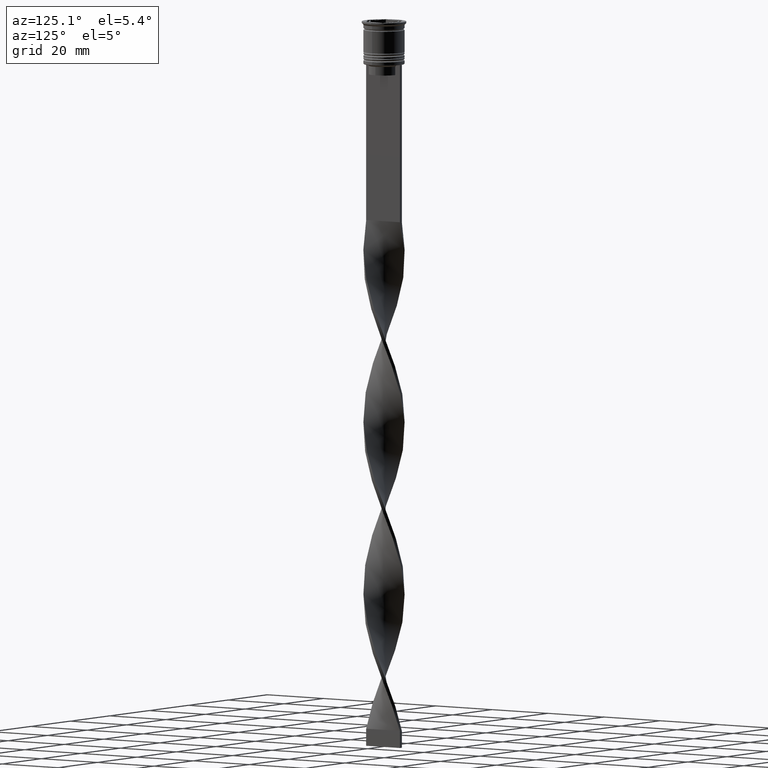
[diagram: clean part render]
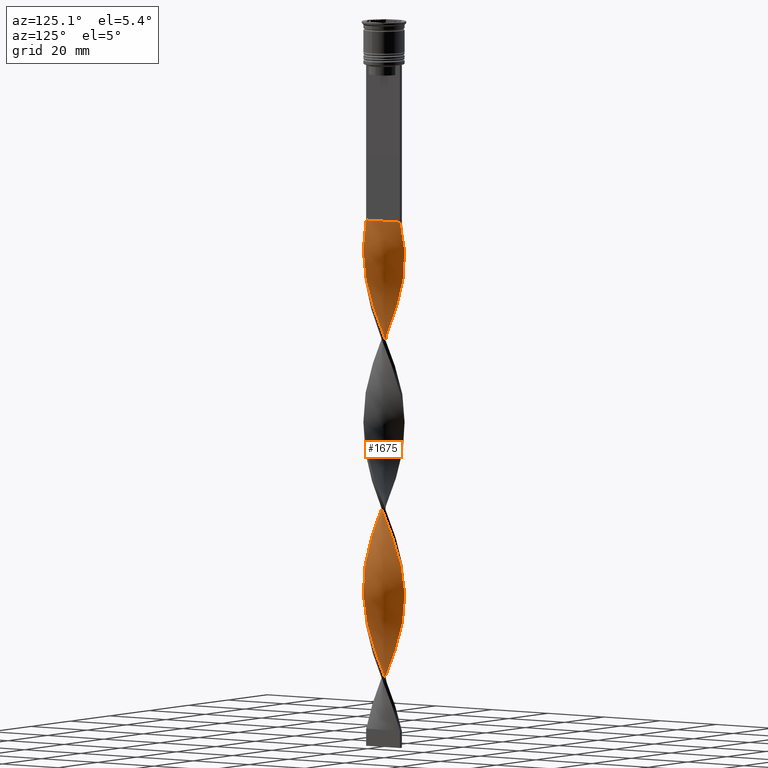
[diagram: same view with one face highlighted and labeled with its STEP entity id]
A machine part, auxiliary view. The second image highlights one B-rep face of the part: STEP entity #1675.
In plain terms, the highlighted face is a freeform B-spline surface patch.
Its self-contained STEP definition (entity closure, byte-faithful):
#18 = CARTESIAN_POINT ( 'NONE',  ( -4.858813575065529022, -3.599054477032529675, -141.7647058823529562 ) ) ;
#23 = CARTESIAN_POINT ( 'NONE',  ( -5.437407565418681088, 2.644969083640993368, -77.49019607843138147 ) ) ;
#39 = CARTESIAN_POINT ( 'NONE',  ( 4.791340338341086635, -3.688403482277188949, -170.9803921568627629 ) ) ;
#43 = CARTESIAN_POINT ( 'NONE',  ( 5.593848926018644363, 2.226848488981700402, -140.3039215686274588 ) ) ;
#59 = CARTESIAN_POINT ( 'NONE',  ( -4.411678320489674121, -4.097205681500676100, -195.8137254901960773 ) ) ;
#60 = CARTESIAN_POINT ( 'NONE',  ( 5.928270878038556901, -1.051477244927329080, -131.5392156862745310 ) ) ;
#84 = CARTESIAN_POINT ( 'NONE',  ( -5.437407565418681088, 2.644969083640993368, -176.8235294117647243 ) ) ;
#105 = CARTESIAN_POINT ( 'NONE',  ( -4.486786045491809816, 4.014816431915658512, -172.4411764705882035 ) ) ;
#106 = CARTESIAN_POINT ( 'NONE',  ( 6.020539237501859375, 0.05574306863229182285, -134.4607843137254974 ) ) ;
#125 = CARTESIAN_POINT ( 'NONE',  ( 2.733484409399328463, -5.364518895816363653, -116.9313725490195992 ) ) ;
#142 = CARTESIAN_POINT ( 'NONE',  ( -4.791340338341087524, -3.688403482277189838, -95.01960784313726549 ) ) ;
#150 = CARTESIAN_POINT ( 'NONE',  ( -3.583701545128942012, 4.838086732939006041, -116.9313725490195992 ) ) ;
#169 = CARTESIAN_POINT ( 'NONE',  ( -1.701213882420739676, 5.775454209519711668, -64.34313725490196134 ) ) ;
#176 = CARTESIAN_POINT ( 'NONE',  ( -4.032016302638262495, -4.506007880724165027, -197.2745098039215463 ) ) ;
#177 = CARTESIAN_POINT ( 'NONE',  ( -5.089420681871064112, 3.216799204635418796, -122.7745098039215605 ) ) ;
#190 = DIRECTION ( 'NONE',  ( 0.000000000000000000, 1.000000000000000000, 0.000000000000000000 ) ) ;
#192 = CARTESIAN_POINT ( 'NONE',  ( -5.907785354072954576, 1.161065118846088762, -128.6176470588235361 ) ) ;
#210 = CARTESIAN_POINT ( 'NONE',  ( 4.411678320489672345, -4.097205681500675212, -70.18627450980390847 ) ) ;
#212 = CARTESIAN_POINT ( 'NONE',  ( 3.135386787619625082, -5.170165585153850607, -65.80392156862745878 ) ) ;
#228 = CARTESIAN_POINT ( 'NONE',  ( -0.5000000000000009992, -6.000000000000000888, -108.1666666666666572 ) ) ;
#234 = CARTESIAN_POINT ( 'NONE',  ( -3.135386787619624194, 5.170165585153850607, -115.4705882352940876 ) ) ;
#246 = CARTESIAN_POINT ( 'NONE',  ( 5.148110570242106832, -3.122011780336759745, -125.6960784313725412 ) ) ;
#252 = CARTESIAN_POINT ( 'NONE',  ( -3.135386787619624194, 5.170165585153850607, -115.4705882352941018 ) ) ;
#263 = CARTESIAN_POINT ( 'NONE',  ( 2.633686111825096710, 5.414212543332559413, -151.9901960784313530 ) ) ;
#267 = CARTESIAN_POINT ( 'NONE',  ( 5.634122364000871741, 2.122890762018907029, -187.0490196078431211 ) ) ;
#268 = CARTESIAN_POINT ( 'NONE',  ( -1.166039236662764988, -5.933094890902375518, -153.4509803921568789 ) ) ;
#281 = CARTESIAN_POINT ( 'NONE',  ( 1.055981877452178974, 5.953668176878988305, -156.3725490196078454 ) ) ;
#287 = CARTESIAN_POINT ( 'NONE',  ( -5.830837162583066835, -1.600812440396822689, -135.9215686274509665 ) ) ;
#290 = CARTESIAN_POINT ( 'NONE',  ( 4.114758515918087056, 4.430578386798786461, -194.3529411764705799 ) ) ;
#293 = CARTESIAN_POINT ( 'NONE',  ( -6.015373881509670895, -0.6136281867224269160, -86.25490196078432348 ) ) ;
#303 = CARTESIAN_POINT ( 'NONE',  ( 0.6110105570574709821, 5.989713357011695827, -204.5784313725490335 ) ) ;
#318 = CARTESIAN_POINT ( 'NONE',  ( -3.230580290619940342, -5.111224263495679487, -147.6078431372548891 ) ) ;
#341 = CARTESIAN_POINT ( 'NONE',  ( -0.6110105570574692058, -5.989713357011694939, -154.9117647058823479 ) ) ;
#364 = CARTESIAN_POINT ( 'NONE',  ( -5.089420681871066776, -3.216799204635418796, -192.8921568627450824 ) ) ;
#365 = CARTESIAN_POINT ( 'NONE',  ( 5.089420681871067664, 3.216799204635417464, -143.2254901960784537 ) ) ;
#385 = CARTESIAN_POINT ( 'NONE',  ( 6.025704593494047856, -0.5021420494578385796, -133.0000000000000000 ) ) ;
#407 = CARTESIAN_POINT ( 'NONE',  ( -6.020539237501859375, -0.05574306863229388370, -184.1274509803921546 ) ) ;
#426 = CARTESIAN_POINT ( 'NONE',  ( 5.800196826636243586, 1.708502050969746833, -138.8431372549019045 ) ) ;
#438 = CARTESIAN_POINT ( 'NONE',  ( -4.114758515918087944, 4.430578386798787349, -71.64705882352942012 ) ) ;
#442 = CARTESIAN_POINT ( 'NONE',  ( -2.236388528178716584, 5.617813528137047818, -165.1372549019608016 ) ) ;
#465 = CARTESIAN_POINT ( 'NONE',  ( -4.411678320489672345, 4.097205681500675212, -119.8529411764705799 ) ) ;
#466 = CARTESIAN_POINT ( 'NONE',  ( 0.6110105570574709821, 5.989713357011695827, -105.2450980392156765 ) ) ;
#486 = CARTESIAN_POINT ( 'NONE',  ( -3.583701545128942456, -4.838086732939007817, -198.7352941176470722 ) ) ;
#488 = CARTESIAN_POINT ( 'NONE',  ( -6.015373881509670007, 0.6136281867224241404, -130.0784313725490335 ) ) ;
#500 = CARTESIAN_POINT ( 'NONE',  ( -0.6110105570574712042, 5.989713357011696715, -61.42156862745097357 ) ) ;
#506 = CARTESIAN_POINT ( 'NONE',  ( 4.486786045491808927, 4.014816431915656736, -93.55882352941176805 ) ) ;
#509 = CARTESIAN_POINT ( 'NONE',  ( -2.131985436030567005, 5.658259501511265555, -112.5490196078431495 ) ) ;
#516 = CARTESIAN_POINT ( 'NONE',  ( -1.593983656741373212, -5.805963839195126042, -105.2450980392156765 ) ) ;
#521 = CARTESIAN_POINT ( 'NONE',  ( -0.4999999999999994449, 5.999999999999999112, -108.1666666666666572 ) ) ;
#524 = CARTESIAN_POINT ( 'NONE',  ( 5.928270878038555125, 1.051477244927328636, -84.79411764705882604 ) ) ;
#539 = CARTESIAN_POINT ( 'NONE',  ( -1.166039236662763434, 5.933094890902378182, -162.2156862745098351 ) ) ;
#544 = CARTESIAN_POINT ( 'NONE',  ( -3.135386787619626414, -5.170165585153851495, -200.1960784313725981 ) ) ;
#545 = CARTESIAN_POINT ( 'NONE',  ( 3.230580290619939454, 5.111224263495680376, -97.94117647058824616 ) ) ;
#559 = CARTESIAN_POINT ( 'NONE',  ( 5.907785354072956352, 1.161065118846087207, -137.3823529411764639 ) ) ;
#563 = CARTESIAN_POINT ( 'NONE',  ( -1.701213882420739676, -5.775454209519709892, -151.9901960784313530 ) ) ;
#564 = CARTESIAN_POINT ( 'NONE',  ( 4.858813575065529022, 3.599054477032530563, -191.4313725490196134 ) ) ;
#574 = CARTESIAN_POINT ( 'NONE',  ( 2.131985436030569225, 5.658259501511266443, -153.4509803921568789 ) ) ;
#577 = CARTESIAN_POINT ( 'NONE',  ( 6.020539237501857599, -0.05574306863229464004, -181.2058823529411598 ) ) ;
#578 = CARTESIAN_POINT ( 'NONE',  ( -1.701213882420739676, -5.775454209519709892, -151.9901960784313530 ) ) ;
#581 = CARTESIAN_POINT ( 'NONE',  ( -6.025704593494047856, 0.5021420494578378024, -83.33333333333332860 ) ) ;
#595 = CARTESIAN_POINT ( 'NONE',  ( 1.701213882420739232, 5.775454209519709892, -201.6568627450980387 ) ) ;
#601 = CARTESIAN_POINT ( 'NONE',  ( -4.411678320489674121, -4.097205681500676100, -96.48039215686274872 ) ) ;
#614 = CARTESIAN_POINT ( 'NONE',  ( 0.5000000000000002220, -5.999999999999999112, -157.8333333333333144 ) ) ;
#615 = CARTESIAN_POINT ( 'NONE',  ( -5.634122364000871741, -2.122890762018906141, -137.3823529411764639 ) ) ;
#632 = CARTESIAN_POINT ( 'NONE',  ( -5.830837162583065947, -1.600812440396822689, -135.9215686274509665 ) ) ;
#662 = CARTESIAN_POINT ( 'NONE',  ( 5.387501025401045140, 2.745194926993649087, -141.7647058823529562 ) ) ;
#681 = CARTESIAN_POINT ( 'NONE',  ( -2.633686111825095821, -5.414212543332559413, -201.6568627450980387 ) ) ;
#682 = CARTESIAN_POINT ( 'NONE',  ( -1.055981877452178086, -5.953668176878989193, -106.7058823529412024 ) ) ;
#698 = CARTESIAN_POINT ( 'NONE',  ( -5.907785354072956352, -1.161065118846087874, -187.0490196078431211 ) ) ;
#720 = CARTESIAN_POINT ( 'NONE',  ( -5.830837162583067723, 1.600812440396822023, -179.7450980392157476 ) ) ;
#721 = CARTESIAN_POINT ( 'NONE',  ( 0.6110105570574698719, -5.989713357011695827, -111.0882352941176379 ) ) ;
#736 = CARTESIAN_POINT ( 'NONE',  ( -5.634122364000873517, 2.122890762018907029, -78.95098039215686470 ) ) ;
#742 = CARTESIAN_POINT ( 'NONE',  ( 0.5000000000000002220, 6.000000000000000888, -157.8333333333333144 ) ) ;
#754 = CARTESIAN_POINT ( 'NONE',  ( -5.148110570242105943, 3.122011780336761522, -76.02941176470586981 ) ) ;
#759 = CARTESIAN_POINT ( 'NONE',  ( -2.131985436030568781, -5.658259501511266443, -203.1176470588235361 ) ) ;
#772 = CARTESIAN_POINT ( 'NONE',  ( -5.437407565418681088, 2.644969083640993368, -77.49019607843136725 ) ) ;
#778 = CARTESIAN_POINT ( 'NONE',  ( -5.593848926018643475, 2.226848488981696850, -125.6960784313725412 ) ) ;
#779 = CARTESIAN_POINT ( 'NONE',  ( 5.800196826636241809, -1.708502050969748609, -77.49019607843136725 ) ) ;
#796 = CARTESIAN_POINT ( 'NONE',  ( -6.015373881509671783, -0.6136281867224271380, -86.25490196078432348 ) ) ;
#801 = CARTESIAN_POINT ( 'NONE',  ( 5.907785354072954576, -1.161065118846086541, -78.95098039215686470 ) ) ;
#817 = CARTESIAN_POINT ( 'NONE',  ( 5.800196826636241809, -1.708502050969748609, -77.49019607843138147 ) ) ;
#819 = CARTESIAN_POINT ( 'NONE',  ( 5.907785354072954576, -1.161065118846086541, -78.95098039215686470 ) ) ;
#829 = CARTESIAN_POINT ( 'NONE',  ( -0.05598187745217849537, 6.046331823121016136, -159.2941176470588118 ) ) ;
#835 = CARTESIAN_POINT ( 'NONE',  ( -5.928270878038555125, -1.051477244927326860, -134.4607843137254974 ) ) ;
#838 = CARTESIAN_POINT ( 'NONE',  ( 4.411678320489672345, -4.097205681500675212, -70.18627450980390847 ) ) ;
#852 = CARTESIAN_POINT ( 'NONE',  ( -3.672669403269013699, 4.770901325147233862, -169.5196078431372371 ) ) ;
#855 = CARTESIAN_POINT ( 'NONE',  ( 6.015373881509669118, -0.6136281867224262498, -179.7450980392157192 ) ) ;
#857 = CARTESIAN_POINT ( 'NONE',  ( 5.593848926018642587, -2.226848488981698626, -175.3627450980391984 ) ) ;
#867 = CARTESIAN_POINT ( 'NONE',  ( 4.791340338341086635, 3.688403482277191614, -144.6862745098039227 ) ) ;
#873 = CARTESIAN_POINT ( 'NONE',  ( 3.230580290619939454, 5.111224263495680376, -197.2745098039215463 ) ) ;
#886 = CARTESIAN_POINT ( 'NONE',  ( -4.486786045491809816, -4.014816431915656736, -143.2254901960784537 ) ) ;
#887 = CARTESIAN_POINT ( 'NONE',  ( -0.4999999999999994449, 5.999999999999999112, -207.5000000000000000 ) ) ;
#891 = CARTESIAN_POINT ( 'NONE',  ( -5.387501025401045140, -2.745194926993649975, -92.09803921568628482 ) ) ;
#921 =( BOUNDED_SURFACE ( )  B_SPLINE_SURFACE ( 1, 2, ( 
 ( #2999, #2910, #1415, #3016, #2114, #2615, #1512, #2024, #3036, #3315, #3816, #1114, #2715, #23, #1534, #3219, #3592, #581, #2982, #293, #1481, #2681, #3884, #891, #2094, #3297, #601, #1796, #3076, #1319, #1258, #1937, #1876, #682, #3733, #2150, #721, #2230, #2793, #2773, #125, #3057, #1300, #2515, #1635, #3652, #2459, #3391, #1239, #2172, #60, #385, #106, #2498, #3435, #426, #43, #662, #365, #2210, #3710, #1594, #1858, #1032, #3673, #3132, #949, #1281, #742, #2479, #1551, #3354, #1894, #442, #3095, #2438, #2754, #972, #1615, #3374, #1570, #84, #3692, #992, #2813, #1011, #407, #2190, #698, #3412, #1917, #3116, #3753, #3809, #2037, #176, #486, #544, #2561, #759, #1680, #1089, #2899 ),
 ( #1426, #1982, #2541, #2251, #3770, #1364, #2862, #1053, #210, #1071, #3517, #3234, #2604, #817, #801, #2268, #3472, #3453, #3211, #2288, #1956, #3175, #1659, #1344, #506, #1108, #2002, #2834, #3499, #2017, #2307, #1718, #3196, #2881, #521, #3826, #2925, #1698, #2326, #234, #150, #3149, #465, #2624, #1405, #1124, #778, #3536, #192, #1382, #2579, #3786, #835, #287, #2344, #1440, #3588, #18, #886, #1506, #2710, #318, #2109, #2639, #563, #1456, #1142, #1215, #614, #1491, #2087, #2361, #2658, #3843, #3327, #3879, #3559, #2692, #927, #2959, #3270, #1739, #3864, #855, #577, #1179, #1790, #2976, #267, #3290, #2056, #2994, #1755, #1476, #1770, #1807, #2376, #2943, #595, #1194, #303, #2415, #2676 ) ),
 .UNSPECIFIED., .F., .F., .F. ) 
 B_SPLINE_SURFACE_WITH_KNOTS ( ( 2, 2 ),
 ( 3, 2, 2, 2, 2, 2, 2, 2, 2, 2, 2, 2, 2, 2, 2, 2, 2, 2, 2, 2, 2, 2, 2, 2, 2, 2, 2, 2, 2, 2, 2, 2, 2, 2, 2, 2, 2, 2, 2, 2, 2, 2, 2, 2, 2, 2, 2, 2, 2, 2, 2, 3 ),
 ( 0.000000000000000000, 1.000000000000000000 ),
 ( 0.000000000000000000, 0.01470588235294117627, 0.02941176470588235253, 0.04411764705882353227, 0.05882352941176470507, 0.07352941176470588480, 0.08823529411764706454, 0.1029411764705882304, 0.1176470588235294101, 0.1323529411764705899, 0.1470588235294117696, 0.1617647058823529493, 0.1764705882352941291, 0.1911764705882352811, 0.2058823529411764608, 0.2205882352941176405, 0.2352941176470588203, 0.2500000000000000000, 0.2647058823529411797, 0.2794117647058823595, 0.2941176470588235392, 0.3088235294117647189, 0.3235294117647058987, 0.3382352941176470784, 0.3529411764705882582, 0.3676470588235294379, 0.3823529411764705621, 0.3970588235294117418, 0.4117647058823529216, 0.4264705882352941013, 0.4411764705882352811, 0.4558823529411764608, 0.4705882352941176405, 0.4852941176470588203, 0.5000000000000000000, 0.5147058823529411242, 0.5294117647058823595, 0.5441176470588234837, 0.5588235294117647189, 0.5735294117647058432, 0.5882352941176470784, 0.6029411764705882026, 0.6176470588235294379, 0.6323529411764705621, 0.6470588235294117974, 0.6617647058823529216, 0.6764705882352941568, 0.6911764705882352811, 0.7058823529411765163, 0.7205882352941176405, 0.7352941176470588758, 0.7500000000000000000 ),
 .UNSPECIFIED. ) 
 GEOMETRIC_REPRESENTATION_ITEM ( )  RATIONAL_B_SPLINE_SURFACE ( (
 ( 1.000000000000000000, 0.9957341762950344677, 1.000000000000000000, 0.9957341762950344677, 1.000000000000000000, 0.9957341762950344677, 1.000000000000000000, 0.9957341762950344677, 1.000000000000000000, 0.9957341762950344677, 1.000000000000000000, 0.9957341762950344677, 1.000000000000000000, 0.9957341762950344677, 1.000000000000000000, 0.9957341762950344677, 1.000000000000000000, 0.9957341762950344677, 1.000000000000000000, 0.9957341762950344677, 1.000000000000000000, 0.9957341762950344677, 1.000000000000000000, 0.9957341762950344677, 1.000000000000000000, 0.9957341762950344677, 1.000000000000000000, 0.9957341762950344677, 1.000000000000000000, 0.9957341762950344677, 1.000000000000000000, 0.9957341762950344677, 1.000000000000000000, 0.9957341762950344677, 1.000000000000000000, 0.9957341762950344677, 1.000000000000000000, 0.9957341762950344677, 1.000000000000000000, 0.9957341762950344677, 1.000000000000000000, 0.9957341762950344677, 1.000000000000000000, 0.9957341762950344677, 1.000000000000000000, 0.9957341762950344677, 1.000000000000000000, 0.9957341762950344677, 1.000000000000000000, 0.9957341762950344677, 1.000000000000000000, 0.9957341762950344677, 1.000000000000000000, 0.9957341762950344677, 1.000000000000000000, 0.9957341762950344677, 1.000000000000000000, 0.9957341762950344677, 1.000000000000000000, 0.9957341762950344677, 1.000000000000000000, 0.9957341762950344677, 1.000000000000000000, 0.9957341762950344677, 1.000000000000000000, 0.9957341762950344677, 1.000000000000000000, 0.9957341762950344677, 1.000000000000000000, 0.9957341762950344677, 1.000000000000000000, 0.9957341762950344677, 1.000000000000000000, 0.9957341762950344677, 1.000000000000000000, 0.9957341762950344677, 1.000000000000000000, 0.9957341762950344677, 1.000000000000000000, 0.9957341762950344677, 1.000000000000000000, 0.9957341762950344677, 1.000000000000000000, 0.9957341762950344677, 1.000000000000000000, 0.9957341762950344677, 1.000000000000000000, 0.9957341762950344677, 1.000000000000000000, 0.9957341762950344677, 1.000000000000000000, 0.9957341762950344677, 1.000000000000000000, 0.9957341762950344677, 1.000000000000000000, 0.9957341762950344677, 1.000000000000000000, 0.9957341762950344677, 1.000000000000000000, 0.9957341762950344677, 1.000000000000000000, 0.9957341762950344677, 1.000000000000000000),
 ( 1.000000000000000000, 0.9957341762950344677, 1.000000000000000000, 0.9957341762950344677, 1.000000000000000000, 0.9957341762950344677, 1.000000000000000000, 0.9957341762950344677, 1.000000000000000000, 0.9957341762950344677, 1.000000000000000000, 0.9957341762950344677, 1.000000000000000000, 0.9957341762950344677, 1.000000000000000000, 0.9957341762950344677, 1.000000000000000000, 0.9957341762950344677, 1.000000000000000000, 0.9957341762950344677, 1.000000000000000000, 0.9957341762950344677, 1.000000000000000000, 0.9957341762950344677, 1.000000000000000000, 0.9957341762950344677, 1.000000000000000000, 0.9957341762950344677, 1.000000000000000000, 0.9957341762950344677, 1.000000000000000000, 0.9957341762950344677, 1.000000000000000000, 0.9957341762950344677, 1.000000000000000000, 0.9957341762950344677, 1.000000000000000000, 0.9957341762950344677, 1.000000000000000000, 0.9957341762950344677, 1.000000000000000000, 0.9957341762950344677, 1.000000000000000000, 0.9957341762950344677, 1.000000000000000000, 0.9957341762950344677, 1.000000000000000000, 0.9957341762950344677, 1.000000000000000000, 0.9957341762950344677, 1.000000000000000000, 0.9957341762950344677, 1.000000000000000000, 0.9957341762950344677, 1.000000000000000000, 0.9957341762950344677, 1.000000000000000000, 0.9957341762950344677, 1.000000000000000000, 0.9957341762950344677, 1.000000000000000000, 0.9957341762950344677, 1.000000000000000000, 0.9957341762950344677, 1.000000000000000000, 0.9957341762950344677, 1.000000000000000000, 0.9957341762950344677, 1.000000000000000000, 0.9957341762950344677, 1.000000000000000000, 0.9957341762950344677, 1.000000000000000000, 0.9957341762950344677, 1.000000000000000000, 0.9957341762950344677, 1.000000000000000000, 0.9957341762950344677, 1.000000000000000000, 0.9957341762950344677, 1.000000000000000000, 0.9957341762950344677, 1.000000000000000000, 0.9957341762950344677, 1.000000000000000000, 0.9957341762950344677, 1.000000000000000000, 0.9957341762950344677, 1.000000000000000000, 0.9957341762950344677, 1.000000000000000000, 0.9957341762950344677, 1.000000000000000000, 0.9957341762950344677, 1.000000000000000000, 0.9957341762950344677, 1.000000000000000000, 0.9957341762950344677, 1.000000000000000000, 0.9957341762950344677, 1.000000000000000000, 0.9957341762950344677, 1.000000000000000000) ) ) 
 REPRESENTATION_ITEM ( '' )  SURFACE ( )  );
#927 = CARTESIAN_POINT ( 'NONE',  ( 5.089420681871065000, -3.216799204635418352, -172.4411764705882035 ) ) ;
#928 = EDGE_CURVE ( 'NONE', #1973, #1950, #1679, .T. ) ;
#929 = CARTESIAN_POINT ( 'NONE',  ( 6.015373881509670007, -0.6136281867224262498, -179.7450980392157476 ) ) ;
#949 = CARTESIAN_POINT ( 'NONE',  ( 1.593983656741371657, 5.805963839195126930, -154.9117647058823479 ) ) ;
#971 = CARTESIAN_POINT ( 'NONE',  ( -5.634122364000873517, 2.122890762018907029, -178.2843137254901933 ) ) ;
#972 = CARTESIAN_POINT ( 'NONE',  ( -4.114758515918087944, 4.430578386798787349, -170.9803921568627629 ) ) ;
#991 = CARTESIAN_POINT ( 'NONE',  ( -5.437407565418681088, 2.644969083640993368, -176.8235294117647243 ) ) ;
#992 = CARTESIAN_POINT ( 'NONE',  ( -5.830837162583068611, 1.600812440396822023, -179.7450980392157192 ) ) ;
#1011 = CARTESIAN_POINT ( 'NONE',  ( -6.025704593494047856, 0.5021420494578378024, -182.6666666666666572 ) ) ;
#1032 = CARTESIAN_POINT ( 'NONE',  ( 3.135386787619624638, 5.170165585153852383, -150.5294117647058840 ) ) ;
#1046 = CARTESIAN_POINT ( 'NONE',  ( -2.633686111825095821, -5.414212543332559413, -102.3235294117646959 ) ) ;
#1053 = CARTESIAN_POINT ( 'NONE',  ( 4.032016302638261607, -4.506007880724164139, -68.72549019607842524 ) ) ;
#1060 = CARTESIAN_POINT ( 'NONE',  ( -0.4999999999999994449, 5.999999999999999112, -207.5000000000000000 ) ) ;
#1071 = CARTESIAN_POINT ( 'NONE',  ( 4.791340338341086635, -3.688403482277188949, -71.64705882352943433 ) ) ;
#1072 = CARTESIAN_POINT ( 'NONE',  ( 4.114758515918087056, 4.430578386798786461, -95.01960784313726549 ) ) ;
#1089 = CARTESIAN_POINT ( 'NONE',  ( -1.055981877452178086, -5.953668176878989193, -206.0392156862745026 ) ) ;
#1090 = CARTESIAN_POINT ( 'NONE',  ( 6.020539237501857599, -0.05574306863229464004, -81.87254901960783116 ) ) ;
#1104 = CARTESIAN_POINT ( 'NONE',  ( -3.135386787619625970, -5.170165585153851495, -100.8627450980392126 ) ) ;
#1108 = CARTESIAN_POINT ( 'NONE',  ( 4.114758515918087056, 4.430578386798786461, -95.01960784313725128 ) ) ;
#1114 = CARTESIAN_POINT ( 'NONE',  ( -4.858813575065530799, 3.599054477032530563, -74.56862745098038658 ) ) ;
#1124 = CARTESIAN_POINT ( 'NONE',  ( -5.387501025401043364, 2.745194926993649975, -124.2352941176470580 ) ) ;
#1126 = CARTESIAN_POINT ( 'NONE',  ( 6.025704593494046080, 0.5021420494578371363, -83.33333333333332860 ) ) ;
#1137 = CARTESIAN_POINT ( 'NONE',  ( 1.701213882420741008, -5.775454209519712556, -114.0098039215686185 ) ) ;
#1142 = CARTESIAN_POINT ( 'NONE',  ( -0.6110105570574692058, -5.989713357011694939, -154.9117647058823479 ) ) ;
#1145 = CARTESIAN_POINT ( 'NONE',  ( 4.486786045491808927, 4.014816431915656736, -93.55882352941176805 ) ) ;
#1157 = CARTESIAN_POINT ( 'NONE',  ( 3.672669403269013699, -4.770901325147233862, -119.8529411764705799 ) ) ;
#1164 = CARTESIAN_POINT ( 'NONE',  ( 2.733484409399326687, 5.364518895816362765, -198.7352941176470722 ) ) ;
#1176 = CARTESIAN_POINT ( 'NONE',  ( 5.089420681871067664, 3.216799204635417464, -143.2254901960784537 ) ) ;
#1179 = CARTESIAN_POINT ( 'NONE',  ( 6.025704593494046080, 0.5021420494578371363, -182.6666666666666572 ) ) ;
#1180 = CARTESIAN_POINT ( 'NONE',  ( 1.701213882420739232, 5.775454209519709892, -201.6568627450980387 ) ) ;
#1194 = CARTESIAN_POINT ( 'NONE',  ( 1.166039236662764322, 5.933094890902375518, -203.1176470588235361 ) ) ;
#1196 = CARTESIAN_POINT ( 'NONE',  ( 5.907785354072954576, -1.161065118846086541, -178.2843137254901933 ) ) ;
#1215 = CARTESIAN_POINT ( 'NONE',  ( -0.05598187745217816924, -6.046331823121015248, -156.3725490196078454 ) ) ;
#1217 = CARTESIAN_POINT ( 'NONE',  ( -6.025704593494046080, -0.5021420494578363591, -133.0000000000000000 ) ) ;
#1235 = CARTESIAN_POINT ( 'NONE',  ( 0.6110105570574709821, 5.989713357011695827, -204.5784313725490335 ) ) ;
#1238 = CARTESIAN_POINT ( 'NONE',  ( -5.928270878038556013, 1.051477244927329524, -181.2058823529411598 ) ) ;
#1239 = CARTESIAN_POINT ( 'NONE',  ( 5.634122364000873517, -2.122890762018908362, -128.6176470588235361 ) ) ;
#1256 = CARTESIAN_POINT ( 'NONE',  ( -2.131985436030568781, -5.658259501511267331, -203.1176470588235361 ) ) ;
#1258 = CARTESIAN_POINT ( 'NONE',  ( -2.633686111825095821, -5.414212543332559413, -102.3235294117646959 ) ) ;
#1281 = CARTESIAN_POINT ( 'NONE',  ( 1.055981877452178752, 5.953668176878989193, -156.3725490196078454 ) ) ;
#1300 = CARTESIAN_POINT ( 'NONE',  ( 3.672669403269013699, -4.770901325147233862, -119.8529411764705799 ) ) ;
#1319 = CARTESIAN_POINT ( 'NONE',  ( -3.135386787619626414, -5.170165585153851495, -100.8627450980392126 ) ) ;
#1337 = CARTESIAN_POINT ( 'NONE',  ( -5.928270878038556013, 1.051477244927329524, -81.87254901960783116 ) ) ;
#1344 = CARTESIAN_POINT ( 'NONE',  ( 4.858813575065529022, 3.599054477032530563, -92.09803921568628482 ) ) ;
#1357 = CARTESIAN_POINT ( 'NONE',  ( -4.032016302638261607, -4.506007880724165027, -97.94117647058824616 ) ) ;
#1362 = VERTEX_POINT ( 'NONE', #1060 ) ;
#1364 = CARTESIAN_POINT ( 'NONE',  ( 3.135386787619625082, -5.170165585153850607, -65.80392156862747299 ) ) ;
#1367 = CARTESIAN_POINT ( 'NONE',  ( -5.387501025401043364, 2.745194926993649975, -124.2352941176470580 ) ) ;
#1382 = CARTESIAN_POINT ( 'NONE',  ( -6.015373881509669118, 0.6136281867224241404, -130.0784313725490335 ) ) ;
#1384 = CARTESIAN_POINT ( 'NONE',  ( 5.148110570242104167, 3.122011780336760189, -90.63725490196078738 ) ) ;
#1398 = CARTESIAN_POINT ( 'NONE',  ( -4.486786045491809816, 4.014816431915658512, -73.10784313725488914 ) ) ;
#1405 = CARTESIAN_POINT ( 'NONE',  ( -5.089420681871064112, 3.216799204635418796, -122.7745098039215605 ) ) ;
#1406 = CARTESIAN_POINT ( 'NONE',  ( 1.593983656741372767, -5.805963839195126042, -61.42156862745097357 ) ) ;
#1415 = CARTESIAN_POINT ( 'NONE',  ( -0.6110105570574712042, 5.989713357011696715, -61.42156862745097357 ) ) ;
#1421 = CARTESIAN_POINT ( 'NONE',  ( 0.05598187745217893252, -6.046331823121016136, -109.6274509803921404 ) ) ;
#1426 = CARTESIAN_POINT ( 'NONE',  ( 0.5000000000000002220, -5.999999999999999112, -58.50000000000000000 ) ) ;
#1436 = CARTESIAN_POINT ( 'NONE',  ( 2.236388528178715696, -5.617813528137047818, -115.4705882352941018 ) ) ;
#1440 = CARTESIAN_POINT ( 'NONE',  ( -5.437407565418680200, -2.644969083640990259, -138.8431372549019045 ) ) ;
#1441 = CARTESIAN_POINT ( 'NONE',  ( -3.583701545128942012, 4.838086732939006041, -116.9313725490195992 ) ) ;
#1451 = CARTESIAN_POINT ( 'NONE',  ( 1.166039236662763434, -5.933094890902378182, -112.5490196078431495 ) ) ;
#1456 = CARTESIAN_POINT ( 'NONE',  ( -1.166039236662764988, -5.933094890902374630, -153.4509803921568789 ) ) ;
#1458 = CARTESIAN_POINT ( 'NONE',  ( 2.633686111825095377, -5.414212543332557637, -163.6764705882352757 ) ) ;
#1471 = CARTESIAN_POINT ( 'NONE',  ( 0.5000000000000002220, 6.000000000000000888, -157.8333333333333144 ) ) ;
#1476 = CARTESIAN_POINT ( 'NONE',  ( 4.114758515918087056, 4.430578386798786461, -194.3529411764705799 ) ) ;
#1477 = CARTESIAN_POINT ( 'NONE',  ( 1.593983656741372767, -5.805963839195126042, -160.7549019607842808 ) ) ;
#1481 = CARTESIAN_POINT ( 'NONE',  ( -5.907785354072956352, -1.161065118846087874, -87.71568627450979250 ) ) ;
#1491 = CARTESIAN_POINT ( 'NONE',  ( 1.055981877452178530, -5.953668176878985641, -159.2941176470588118 ) ) ;
#1492 = CARTESIAN_POINT ( 'NONE',  ( 5.928270878038555125, 1.051477244927328636, -184.1274509803921546 ) ) ;
#1506 = CARTESIAN_POINT ( 'NONE',  ( -4.114758515918085280, -4.430578386798788237, -144.6862745098039227 ) ) ;
#1508 = CARTESIAN_POINT ( 'NONE',  ( 1.166039236662764322, 5.933094890902376406, -203.1176470588235361 ) ) ;
#1512 = CARTESIAN_POINT ( 'NONE',  ( -2.733484409399328019, 5.364518895816364541, -67.26470588235292780 ) ) ;
#1530 = CARTESIAN_POINT ( 'NONE',  ( 6.025704593494046080, 0.5021420494578371363, -182.6666666666666856 ) ) ;
#1534 = CARTESIAN_POINT ( 'NONE',  ( -5.634122364000873517, 2.122890762018907029, -78.95098039215686470 ) ) ;
#1550 = CARTESIAN_POINT ( 'NONE',  ( -3.583701545128942456, -4.838086732939007817, -198.7352941176470722 ) ) ;
#1551 = CARTESIAN_POINT ( 'NONE',  ( -0.6110105570574712042, 5.989713357011696715, -160.7549019607842808 ) ) ;
#1569 = CARTESIAN_POINT ( 'NONE',  ( -4.114758515918087944, 4.430578386798787349, -170.9803921568627629 ) ) ;
#1570 = CARTESIAN_POINT ( 'NONE',  ( -5.148110570242105943, 3.122011780336761522, -175.3627450980391984 ) ) ;
#1594 = CARTESIAN_POINT ( 'NONE',  ( 4.032016302638263383, 4.506007880724165027, -147.6078431372548891 ) ) ;
#1614 = CARTESIAN_POINT ( 'NONE',  ( -1.055981877452178308, -5.953668176878988305, -206.0392156862745026 ) ) ;
#1615 = CARTESIAN_POINT ( 'NONE',  ( -4.486786045491809816, 4.014816431915658512, -172.4411764705882035 ) ) ;
#1635 = CARTESIAN_POINT ( 'NONE',  ( 4.486786045491808927, -4.014816431915659400, -122.7745098039215605 ) ) ;
#1652 = CARTESIAN_POINT ( 'NONE',  ( -2.236388528178716140, 5.617813528137047818, -65.80392156862745878 ) ) ;
#1659 = CARTESIAN_POINT ( 'NONE',  ( 5.148110570242104167, 3.122011780336760189, -90.63725490196078738 ) ) ;
#1661 = CARTESIAN_POINT ( 'NONE',  ( 2.236388528178716140, 5.617813528137045154, -100.8627450980392126 ) ) ;
#1674 = CARTESIAN_POINT ( 'NONE',  ( -3.672669403269013699, 4.770901325147233862, -70.18627450980390847 ) ) ;
#1675 = ADVANCED_FACE ( 'NONE', ( #1705 ), #921, .T. ) ;
#1679 = LINE ( 'NONE', #2880, #2277 ) ;
#1680 = CARTESIAN_POINT ( 'NONE',  ( -1.593983656741373212, -5.805963839195126042, -204.5784313725490335 ) ) ;
#1698 = CARTESIAN_POINT ( 'NONE',  ( -2.131985436030567005, 5.658259501511264666, -112.5490196078431495 ) ) ;
#1699 = CARTESIAN_POINT ( 'NONE',  ( -2.633686111825096265, 5.414212543332556749, -114.0098039215686185 ) ) ;
#1702 =( BOUNDED_CURVE ( )  B_SPLINE_CURVE ( 2, ( #2919, #3512, #500, #3493, #169, #1652, #2828, #3429, #1674, #438, #1398, #3821, #754, #772, #736, #2854, #1337, #1974, #2875, #796, #1996, #2597, #3126, #2011, #3764, #142, #3747, #1357, #1951, #1104, #1046, #3205, #516, #1711, #228, #1421, #2067, #1451, #1137, #1436, #2030, #2053, #1157, #3250, #3530, #2672, #246, #2651, #2635, #2970, #2358, #3585, #3876, #3859, #559, #1751, #3569, #3265, #1176, #867, #2956, #2373, #2939, #2320, #263, #574, #1766, #281, #1471, #829, #3226, #539, #2338, #1734, #3839, #3553, #852, #1569, #105, #3410, #2209, #991, #971, #720, #1238, #3390, #1915, #3731, #1830, #3353, #2770, #3333, #364, #2148, #59, #2189, #1550, #3373, #681, #1256, #2734, #1614, #3709 ),
 .UNSPECIFIED., .F., .T. ) 
 B_SPLINE_CURVE_WITH_KNOTS ( ( 3, 2, 2, 2, 2, 2, 2, 2, 2, 2, 2, 2, 2, 2, 2, 2, 2, 2, 2, 2, 2, 2, 2, 2, 2, 2, 2, 2, 2, 2, 2, 2, 2, 2, 2, 2, 2, 2, 2, 2, 2, 2, 2, 2, 2, 2, 2, 2, 2, 2, 2, 3 ),
 ( 0.000000000000000000, 0.01470588235294117453, 0.02941176470588234906, 0.04411764705882353227, 0.05882352941176469813, 0.07352941176470588480, 0.08823529411764706454, 0.1029411764705882443, 0.1176470588235293963, 0.1323529411764705899, 0.1470588235294117696, 0.1617647058823529493, 0.1764705882352941291, 0.1911764705882352811, 0.2058823529411764885, 0.2205882352941176405, 0.2352941176470587925, 0.2500000000000000000, 0.2647058823529411797, 0.2794117647058823595, 0.2941176470588235392, 0.3088235294117647189, 0.3235294117647058987, 0.3382352941176470229, 0.3529411764705882582, 0.3676470588235294379, 0.3823529411764705621, 0.3970588235294117418, 0.4117647058823529771, 0.4264705882352941013, 0.4411764705882352811, 0.4558823529411764608, 0.4705882352941175850, 0.4852941176470588203, 0.5000000000000000000, 0.5147058823529411242, 0.5294117647058823595, 0.5441176470588234837, 0.5588235294117647189, 0.5735294117647058432, 0.5882352941176470784, 0.6029411764705882026, 0.6176470588235294379, 0.6323529411764705621, 0.6470588235294117974, 0.6617647058823529216, 0.6764705882352940458, 0.6911764705882351700, 0.7058823529411765163, 0.7205882352941176405, 0.7352941176470588758, 0.7500000000000000000 ),
 .UNSPECIFIED. ) 
 CURVE ( )  GEOMETRIC_REPRESENTATION_ITEM ( )  RATIONAL_B_SPLINE_CURVE ( ( 1.000000000000000000, 0.9957341762950344677, 1.000000000000000000, 0.9957341762950344677, 1.000000000000000000, 0.9957341762950344677, 1.000000000000000000, 0.9957341762950344677, 1.000000000000000000, 0.9957341762950344677, 1.000000000000000000, 0.9957341762950344677, 1.000000000000000000, 0.9957341762950344677, 1.000000000000000000, 0.9957341762950344677, 1.000000000000000000, 0.9957341762950344677, 1.000000000000000000, 0.9957341762950344677, 1.000000000000000000, 0.9957341762950344677, 1.000000000000000000, 0.9957341762950344677, 1.000000000000000000, 0.9957341762950344677, 1.000000000000000000, 0.9957341762950344677, 1.000000000000000000, 0.9957341762950344677, 1.000000000000000000, 0.9957341762950344677, 1.000000000000000000, 0.9957341762950344677, 1.000000000000000000, 0.9957341762950344677, 1.000000000000000000, 0.9957341762950344677, 1.000000000000000000, 0.9957341762950344677, 1.000000000000000000, 0.9957341762950344677, 1.000000000000000000, 0.9957341762950344677, 1.000000000000000000, 0.9957341762950344677, 1.000000000000000000, 0.9957341762950344677, 1.000000000000000000, 0.9957341762950344677, 1.000000000000000000, 0.9957341762950344677, 1.000000000000000000, 0.9957341762950344677, 1.000000000000000000, 0.9957341762950344677, 1.000000000000000000, 0.9957341762950344677, 1.000000000000000000, 0.9957341762950344677, 1.000000000000000000, 0.9957341762950344677, 1.000000000000000000, 0.9957341762950344677, 1.000000000000000000, 0.9957341762950344677, 1.000000000000000000, 0.9957341762950344677, 1.000000000000000000, 0.9957341762950344677, 1.000000000000000000, 0.9957341762950344677, 1.000000000000000000, 0.9957341762950344677, 1.000000000000000000, 0.9957341762950344677, 1.000000000000000000, 0.9957341762950344677, 1.000000000000000000, 0.9957341762950344677, 1.000000000000000000, 0.9957341762950344677, 1.000000000000000000, 0.9957341762950344677, 1.000000000000000000, 0.9957341762950344677, 1.000000000000000000, 0.9957341762950344677, 1.000000000000000000, 0.9957341762950344677, 1.000000000000000000, 0.9957341762950344677, 1.000000000000000000, 0.9957341762950344677, 1.000000000000000000, 0.9957341762950344677, 1.000000000000000000, 0.9957341762950344677, 1.000000000000000000, 0.9957341762950344677, 1.000000000000000000, 0.9957341762950344677, 1.000000000000000000 ) ) 
 REPRESENTATION_ITEM ( '' )  );
#1705 = FACE_OUTER_BOUND ( 'NONE', #3221, .T. ) ;
#1711 = CARTESIAN_POINT ( 'NONE',  ( -1.055981877452178308, -5.953668176878988305, -106.7058823529411882 ) ) ;
#1718 = CARTESIAN_POINT ( 'NONE',  ( 1.166039236662764322, 5.933094890902375518, -103.7843137254901933 ) ) ;
#1719 = CARTESIAN_POINT ( 'NONE',  ( 4.858813575065529022, 3.599054477032530563, -92.09803921568628482 ) ) ;
#1734 = CARTESIAN_POINT ( 'NONE',  ( -2.236388528178716140, 5.617813528137047818, -165.1372549019608016 ) ) ;
#1739 = CARTESIAN_POINT ( 'NONE',  ( 5.800196826636241809, -1.708502050969748609, -176.8235294117647243 ) ) ;
#1740 = CARTESIAN_POINT ( 'NONE',  ( 1.166039236662764322, 5.933094890902376406, -103.7843137254901791 ) ) ;
#1751 = CARTESIAN_POINT ( 'NONE',  ( 5.800196826636243586, 1.708502050969746833, -138.8431372549019329 ) ) ;
#1755 = CARTESIAN_POINT ( 'NONE',  ( 4.486786045491808927, 4.014816431915656736, -192.8921568627450824 ) ) ;
#1757 = CARTESIAN_POINT ( 'NONE',  ( -5.437407565418680200, -2.644969083640990259, -138.8431372549019329 ) ) ;
#1766 = CARTESIAN_POINT ( 'NONE',  ( 1.593983656741371657, 5.805963839195126930, -154.9117647058823479 ) ) ;
#1770 = CARTESIAN_POINT ( 'NONE',  ( 3.672669403269014143, 4.770901325147232086, -195.8137254901960773 ) ) ;
#1772 = VERTEX_POINT ( 'NONE', #3704 ) ;
#1773 = CARTESIAN_POINT ( 'NONE',  ( 2.131985436030567005, -5.658259501511265555, -162.2156862745098351 ) ) ;
#1788 = CARTESIAN_POINT ( 'NONE',  ( -0.5000000000000004441, -2.000000000000000888, -207.5000000000000000 ) ) ;
#1790 = CARTESIAN_POINT ( 'NONE',  ( 5.928270878038555125, 1.051477244927328636, -184.1274509803921546 ) ) ;
#1796 = CARTESIAN_POINT ( 'NONE',  ( -4.032016302638262495, -4.506007880724165027, -97.94117647058824616 ) ) ;
#1807 = CARTESIAN_POINT ( 'NONE',  ( 3.230580290619939454, 5.111224263495680376, -197.2745098039215463 ) ) ;
#1808 = CARTESIAN_POINT ( 'NONE',  ( 0.5000000000000002220, -5.999999999999999112, -157.8333333333333144 ) ) ;
#1826 = CARTESIAN_POINT ( 'NONE',  ( -4.114758515918085280, -4.430578386798788237, -144.6862745098039227 ) ) ;
#1830 = CARTESIAN_POINT ( 'NONE',  ( -5.907785354072956352, -1.161065118846087874, -187.0490196078431211 ) ) ;
#1858 = CARTESIAN_POINT ( 'NONE',  ( 3.583701545128945121, 4.838086732939006041, -149.0686274509803866 ) ) ;
#1876 = CARTESIAN_POINT ( 'NONE',  ( -1.593983656741373212, -5.805963839195126042, -105.2450980392156765 ) ) ;
#1894 = CARTESIAN_POINT ( 'NONE',  ( -1.701213882420739676, 5.775454209519711668, -163.6764705882352757 ) ) ;
#1915 = CARTESIAN_POINT ( 'NONE',  ( -6.020539237501859375, -0.05574306863229388370, -184.1274509803921546 ) ) ;
#1917 = CARTESIAN_POINT ( 'NONE',  ( -5.593848926018644363, -2.226848488981698626, -189.9705882352941160 ) ) ;
#1937 = CARTESIAN_POINT ( 'NONE',  ( -2.131985436030568781, -5.658259501511266443, -103.7843137254901933 ) ) ;
#1950 = VERTEX_POINT ( 'NONE', #2533 ) ;
#1951 = CARTESIAN_POINT ( 'NONE',  ( -3.583701545128942456, -4.838086732939007817, -99.40196078431372939 ) ) ;
#1956 = CARTESIAN_POINT ( 'NONE',  ( 5.634122364000871741, 2.122890762018907029, -87.71568627450979250 ) ) ;
#1958 = CARTESIAN_POINT ( 'NONE',  ( 5.593848926018642587, -2.226848488981698626, -76.02941176470586981 ) ) ;
#1973 = VERTEX_POINT ( 'NONE', #3144 ) ;
#1974 = CARTESIAN_POINT ( 'NONE',  ( -6.025704593494047856, 0.5021420494578378024, -83.33333333333332860 ) ) ;
#1976 = ORIENTED_EDGE ( 'NONE', *, *, #928, .F. ) ;
#1982 = CARTESIAN_POINT ( 'NONE',  ( 1.055981877452178530, -5.953668176878985641, -59.96078431372549744 ) ) ;
#1983 = CARTESIAN_POINT ( 'NONE',  ( -0.4999999999999994449, 5.999999999999999112, -108.1666666666666572 ) ) ;
#1996 = CARTESIAN_POINT ( 'NONE',  ( -5.907785354072956352, -1.161065118846087874, -87.71568627450979250 ) ) ;
#2002 = CARTESIAN_POINT ( 'NONE',  ( 3.672669403269014143, 4.770901325147232086, -96.48039215686274872 ) ) ;
#2003 = CARTESIAN_POINT ( 'NONE',  ( 0.05598187745217741290, 6.046331823121016136, -106.7058823529411882 ) ) ;
#2011 = CARTESIAN_POINT ( 'NONE',  ( -5.387501025401045140, -2.745194926993649975, -92.09803921568628482 ) ) ;
#2017 = CARTESIAN_POINT ( 'NONE',  ( 2.236388528178716584, 5.617813528137046042, -100.8627450980392126 ) ) ;
#2018 = EDGE_CURVE ( 'NONE', #1950, #1772, #1702, .T. ) ;
#2024 = CARTESIAN_POINT ( 'NONE',  ( -3.230580290619940786, 5.111224263495681264, -68.72549019607842524 ) ) ;
#2030 = CARTESIAN_POINT ( 'NONE',  ( 2.733484409399328463, -5.364518895816363653, -116.9313725490195992 ) ) ;
#2037 = CARTESIAN_POINT ( 'NONE',  ( -4.411678320489674121, -4.097205681500676100, -195.8137254901960773 ) ) ;
#2039 = CARTESIAN_POINT ( 'NONE',  ( 3.672669403269014143, 4.770901325147232086, -96.48039215686274872 ) ) ;
#2053 = CARTESIAN_POINT ( 'NONE',  ( 3.230580290619939010, -5.111224263495682152, -118.3921568627451109 ) ) ;
#2056 = CARTESIAN_POINT ( 'NONE',  ( 5.148110570242104167, 3.122011780336760189, -189.9705882352941160 ) ) ;
#2057 = CARTESIAN_POINT ( 'NONE',  ( 5.634122364000871741, 2.122890762018907029, -187.0490196078431211 ) ) ;
#2067 = CARTESIAN_POINT ( 'NONE',  ( 0.6110105570574698719, -5.989713357011695827, -111.0882352941176379 ) ) ;
#2069 = CARTESIAN_POINT ( 'NONE',  ( -0.4999999999999994449, 5.999999999999999112, -207.5000000000000000 ) ) ;
#2073 = CARTESIAN_POINT ( 'NONE',  ( 5.089420681871065000, -3.216799204635418352, -172.4411764705882035 ) ) ;
#2087 = CARTESIAN_POINT ( 'NONE',  ( 1.593983656741372767, -5.805963839195126042, -160.7549019607842808 ) ) ;
#2094 = CARTESIAN_POINT ( 'NONE',  ( -5.089420681871066776, -3.216799204635418796, -93.55882352941176805 ) ) ;
#2109 = CARTESIAN_POINT ( 'NONE',  ( -2.733484409399329351, -5.364518895816360988, -149.0686274509803866 ) ) ;
#2111 = CARTESIAN_POINT ( 'NONE',  ( 2.236388528178716140, 5.617813528137045154, -200.1960784313725696 ) ) ;
#2114 = CARTESIAN_POINT ( 'NONE',  ( -1.701213882420739676, 5.775454209519711668, -64.34313725490196134 ) ) ;
#2148 = CARTESIAN_POINT ( 'NONE',  ( -4.791340338341087524, -3.688403482277189838, -194.3529411764705799 ) ) ;
#2150 = CARTESIAN_POINT ( 'NONE',  ( 0.05598187745217893252, -6.046331823121015248, -109.6274509803921546 ) ) ;
#2172 = CARTESIAN_POINT ( 'NONE',  ( 5.830837162583069500, -1.600812440396820246, -130.0784313725490335 ) ) ;
#2189 = CARTESIAN_POINT ( 'NONE',  ( -4.032016302638261607, -4.506007880724165027, -197.2745098039215463 ) ) ;
#2190 = CARTESIAN_POINT ( 'NONE',  ( -6.015373881509670895, -0.6136281867224269160, -185.5882352941176237 ) ) ;
#2209 = CARTESIAN_POINT ( 'NONE',  ( -5.148110570242105943, 3.122011780336761522, -175.3627450980391984 ) ) ;
#2210 = CARTESIAN_POINT ( 'NONE',  ( 4.791340338341086635, 3.688403482277191614, -144.6862745098039227 ) ) ;
#2214 = ORIENTED_EDGE ( 'NONE', *, *, #2616, .T. ) ;
#2230 = CARTESIAN_POINT ( 'NONE',  ( 1.166039236662763434, -5.933094890902377294, -112.5490196078431495 ) ) ;
#2251 = CARTESIAN_POINT ( 'NONE',  ( 2.131985436030567005, -5.658259501511264666, -62.88235294117647811 ) ) ;
#2268 = CARTESIAN_POINT ( 'NONE',  ( 6.015373881509669118, -0.6136281867224262498, -80.41176470588234793 ) ) ;
#2269 = CARTESIAN_POINT ( 'NONE',  ( -5.907785354072954576, 1.161065118846088762, -128.6176470588235361 ) ) ;
#2277 = VECTOR ( 'NONE', #190, 1000.000000000000000 ) ;
#2288 = CARTESIAN_POINT ( 'NONE',  ( 5.830837162583066835, 1.600812440396822023, -86.25490196078432348 ) ) ;
#2307 = CARTESIAN_POINT ( 'NONE',  ( 1.701213882420739232, 5.775454209519709892, -102.3235294117646959 ) ) ;
#2309 = CARTESIAN_POINT ( 'NONE',  ( 6.015373881509670007, -0.6136281867224262498, -80.41176470588234793 ) ) ;
#2320 = CARTESIAN_POINT ( 'NONE',  ( 3.135386787619624638, 5.170165585153852383, -150.5294117647058840 ) ) ;
#2326 = CARTESIAN_POINT ( 'NONE',  ( -2.633686111825096265, 5.414212543332556749, -114.0098039215686185 ) ) ;
#2327 = CARTESIAN_POINT ( 'NONE',  ( 5.830837162583065947, 1.600812440396822023, -86.25490196078432348 ) ) ;
#2338 = CARTESIAN_POINT ( 'NONE',  ( -1.701213882420739676, 5.775454209519711668, -163.6764705882352757 ) ) ;
#2344 = CARTESIAN_POINT ( 'NONE',  ( -5.634122364000871741, -2.122890762018906141, -137.3823529411764639 ) ) ;
#2345 = CARTESIAN_POINT ( 'NONE',  ( -4.411678320489672345, 4.097205681500675212, -119.8529411764705799 ) ) ;
#2358 = CARTESIAN_POINT ( 'NONE',  ( 5.928270878038556901, -1.051477244927329080, -131.5392156862745310 ) ) ;
#2361 = CARTESIAN_POINT ( 'NONE',  ( 2.131985436030567005, -5.658259501511264666, -162.2156862745098351 ) ) ;
#2373 = CARTESIAN_POINT ( 'NONE',  ( 4.032016302638262495, 4.506007880724165027, -147.6078431372548891 ) ) ;
#2376 = CARTESIAN_POINT ( 'NONE',  ( 2.733484409399326687, 5.364518895816362765, -198.7352941176470722 ) ) ;
#2377 = CARTESIAN_POINT ( 'NONE',  ( 5.387501025401043364, -2.745194926993648199, -173.9019607843137294 ) ) ;
#2395 = CARTESIAN_POINT ( 'NONE',  ( -4.486786045491809816, -4.014816431915656736, -143.2254901960784537 ) ) ;
#2415 = CARTESIAN_POINT ( 'NONE',  ( 0.05598187745217741984, 6.046331823121015248, -206.0392156862745026 ) ) ;
#2416 = CARTESIAN_POINT ( 'NONE',  ( -3.230580290619940342, -5.111224263495679487, -147.6078431372548891 ) ) ;
#2434 = CARTESIAN_POINT ( 'NONE',  ( 3.135386787619625082, -5.170165585153850607, -165.1372549019608016 ) ) ;
#2438 = CARTESIAN_POINT ( 'NONE',  ( -3.230580290619940786, 5.111224263495681264, -168.0588235294117680 ) ) ;
#2459 = CARTESIAN_POINT ( 'NONE',  ( 5.148110570242106832, -3.122011780336759745, -125.6960784313725412 ) ) ;
#2479 = CARTESIAN_POINT ( 'NONE',  ( -0.05598187745217849537, 6.046331823121015248, -159.2941176470588118 ) ) ;
#2498 = CARTESIAN_POINT ( 'NONE',  ( 6.015373881509670895, 0.6136281867224275821, -135.9215686274509665 ) ) ;
#2515 = CARTESIAN_POINT ( 'NONE',  ( 4.114758515918088833, -4.430578386798787349, -121.3137254901960631 ) ) ;
#2533 = CARTESIAN_POINT ( 'NONE',  ( 0.5000000000000002220, 6.000000000000000888, -58.50000000000000000 ) ) ;
#2541 = CARTESIAN_POINT ( 'NONE',  ( 1.593983656741372767, -5.805963839195126042, -61.42156862745097357 ) ) ;
#2561 = CARTESIAN_POINT ( 'NONE',  ( -2.633686111825095821, -5.414212543332559413, -201.6568627450980387 ) ) ;
#2563 = CARTESIAN_POINT ( 'NONE',  ( -5.593848926018643475, 2.226848488981696850, -125.6960784313725412 ) ) ;
#2579 = CARTESIAN_POINT ( 'NONE',  ( -6.020539237501857599, 0.05574306863229388370, -131.5392156862745310 ) ) ;
#2580 = CARTESIAN_POINT ( 'NONE',  ( 5.387501025401043364, -2.745194926993648199, -74.56862745098038658 ) ) ;
#2597 = CARTESIAN_POINT ( 'NONE',  ( -5.800196826636243586, -1.708502050969748609, -89.17647058823528994 ) ) ;
#2604 = CARTESIAN_POINT ( 'NONE',  ( 5.593848926018642587, -2.226848488981698626, -76.02941176470586981 ) ) ;
#2615 = CARTESIAN_POINT ( 'NONE',  ( -2.236388528178716584, 5.617813528137047818, -65.80392156862747299 ) ) ;
#2616 = EDGE_CURVE ( 'NONE', #1973, #1362, #3463, .T. ) ;
#2624 = CARTESIAN_POINT ( 'NONE',  ( -4.791340338341087524, 3.688403482277188061, -121.3137254901960631 ) ) ;
#2625 = CARTESIAN_POINT ( 'NONE',  ( 3.583701545128941124, -4.838086732939006041, -67.26470588235292780 ) ) ;
#2635 = CARTESIAN_POINT ( 'NONE',  ( 5.634122364000873517, -2.122890762018908362, -128.6176470588235361 ) ) ;
#2639 = CARTESIAN_POINT ( 'NONE',  ( -2.236388528178714807, -5.617813528137046930, -150.5294117647058840 ) ) ;
#2640 = CARTESIAN_POINT ( 'NONE',  ( 2.633686111825095377, -5.414212543332557637, -64.34313725490196134 ) ) ;
#2651 = CARTESIAN_POINT ( 'NONE',  ( 5.437407565418681088, -2.644969083640992924, -127.1568627450980244 ) ) ;
#2658 = CARTESIAN_POINT ( 'NONE',  ( 2.633686111825095377, -5.414212543332557637, -163.6764705882352757 ) ) ;
#2660 = CARTESIAN_POINT ( 'NONE',  ( 4.032016302638260719, -4.506007880724164139, -168.0588235294117680 ) ) ;
#2672 = CARTESIAN_POINT ( 'NONE',  ( 4.858813575065529911, -3.599054477032532340, -124.2352941176470580 ) ) ;
#2676 = CARTESIAN_POINT ( 'NONE',  ( -0.4999999999999994449, 5.999999999999999112, -207.5000000000000000 ) ) ;
#2677 = CARTESIAN_POINT ( 'NONE',  ( 3.672669403269014143, 4.770901325147232086, -195.8137254901960773 ) ) ;
#2681 = CARTESIAN_POINT ( 'NONE',  ( -5.800196826636243586, -1.708502050969748609, -89.17647058823527573 ) ) ;
#2692 = CARTESIAN_POINT ( 'NONE',  ( 4.791340338341086635, -3.688403482277188949, -170.9803921568627629 ) ) ;
#2693 = CARTESIAN_POINT ( 'NONE',  ( 1.055981877452178752, -5.953668176878984752, -159.2941176470588118 ) ) ;
#2710 = CARTESIAN_POINT ( 'NONE',  ( -3.672669403269011923, -4.770901325147233862, -146.1470588235294201 ) ) ;
#2715 = CARTESIAN_POINT ( 'NONE',  ( -5.148110570242105943, 3.122011780336761522, -76.02941176470586981 ) ) ;
#2734 = CARTESIAN_POINT ( 'NONE',  ( -1.593983656741373212, -5.805963839195126042, -204.5784313725490335 ) ) ;
#2754 = CARTESIAN_POINT ( 'NONE',  ( -3.672669403269013699, 4.770901325147233862, -169.5196078431372371 ) ) ;
#2770 = CARTESIAN_POINT ( 'NONE',  ( -5.593848926018644363, -2.226848488981698626, -189.9705882352941160 ) ) ;
#2773 = CARTESIAN_POINT ( 'NONE',  ( 2.236388528178716140, -5.617813528137047818, -115.4705882352940876 ) ) ;
#2793 = CARTESIAN_POINT ( 'NONE',  ( 1.701213882420741008, -5.775454209519712556, -114.0098039215686185 ) ) ;
#2813 = CARTESIAN_POINT ( 'NONE',  ( -5.928270878038556013, 1.051477244927329524, -181.2058823529411598 ) ) ;
#2828 = CARTESIAN_POINT ( 'NONE',  ( -2.733484409399328019, 5.364518895816364541, -67.26470588235292780 ) ) ;
#2834 = CARTESIAN_POINT ( 'NONE',  ( 3.230580290619939454, 5.111224263495680376, -97.94117647058824616 ) ) ;
#2854 = CARTESIAN_POINT ( 'NONE',  ( -5.830837162583067723, 1.600812440396822023, -80.41176470588234793 ) ) ;
#2862 = CARTESIAN_POINT ( 'NONE',  ( 3.583701545128941124, -4.838086732939006041, -67.26470588235292780 ) ) ;
#2864 = CARTESIAN_POINT ( 'NONE',  ( -4.791340338341087524, 3.688403482277188061, -121.3137254901960773 ) ) ;
#2875 = CARTESIAN_POINT ( 'NONE',  ( -6.020539237501859375, -0.05574306863229388370, -84.79411764705882604 ) ) ;
#2880 = CARTESIAN_POINT ( 'NONE',  ( 0.5000000000000002220, -6.000000000000000000, -58.50000000000000000 ) ) ;
#2881 = CARTESIAN_POINT ( 'NONE',  ( 0.05598187745217741984, 6.046331823121015248, -106.7058823529412024 ) ) ;
#2884 = CARTESIAN_POINT ( 'NONE',  ( -6.020539237501857599, 0.05574306863229388370, -131.5392156862745310 ) ) ;
#2899 = CARTESIAN_POINT ( 'NONE',  ( -0.5000000000000009992, -6.000000000000000888, -207.5000000000000000 ) ) ;
#2910 = CARTESIAN_POINT ( 'NONE',  ( -0.05598187745217849537, 6.046331823121015248, -59.96078431372549744 ) ) ;
#2919 = CARTESIAN_POINT ( 'NONE',  ( 0.5000000000000002220, 6.000000000000000888, -58.50000000000000000 ) ) ;
#2925 = CARTESIAN_POINT ( 'NONE',  ( -1.593983656741371657, 5.805963839195126042, -111.0882352941176379 ) ) ;
#2937 = ORIENTED_EDGE ( 'NONE', *, *, #3134, .F. ) ;
#2939 = CARTESIAN_POINT ( 'NONE',  ( 3.583701545128945121, 4.838086732939006041, -149.0686274509803866 ) ) ;
#2943 = CARTESIAN_POINT ( 'NONE',  ( 2.236388528178716584, 5.617813528137046042, -200.1960784313725981 ) ) ;
#2944 = CARTESIAN_POINT ( 'NONE',  ( -1.593983656741371657, 5.805963839195126042, -111.0882352941176379 ) ) ;
#2956 = CARTESIAN_POINT ( 'NONE',  ( 4.411678320489673233, 4.097205681500676988, -146.1470588235294201 ) ) ;
#2959 = CARTESIAN_POINT ( 'NONE',  ( 5.387501025401043364, -2.745194926993648643, -173.9019607843137294 ) ) ;
#2960 = CARTESIAN_POINT ( 'NONE',  ( -2.733484409399329351, -5.364518895816360988, -149.0686274509803866 ) ) ;
#2970 = CARTESIAN_POINT ( 'NONE',  ( 5.830837162583069500, -1.600812440396820246, -130.0784313725490335 ) ) ;
#2976 = CARTESIAN_POINT ( 'NONE',  ( 5.830837162583066835, 1.600812440396822023, -185.5882352941176237 ) ) ;
#2978 = CARTESIAN_POINT ( 'NONE',  ( -3.672669403269011923, -4.770901325147233862, -146.1470588235294201 ) ) ;
#2982 = CARTESIAN_POINT ( 'NONE',  ( -6.020539237501859375, -0.05574306863229388370, -84.79411764705882604 ) ) ;
#2994 = CARTESIAN_POINT ( 'NONE',  ( 4.858813575065529022, 3.599054477032530563, -191.4313725490196134 ) ) ;
#2995 = CARTESIAN_POINT ( 'NONE',  ( 3.583701545128941124, -4.838086732939006041, -166.5980392156862706 ) ) ;
#2999 = CARTESIAN_POINT ( 'NONE',  ( 0.5000000000000002220, 6.000000000000000888, -58.50000000000000000 ) ) ;
#3008 = CARTESIAN_POINT ( 'NONE',  ( -0.5000000000000009992, -6.000000000000000888, -207.5000000000000000 ) ) ;
#3012 = CARTESIAN_POINT ( 'NONE',  ( 4.411678320489672345, -4.097205681500675212, -169.5196078431372371 ) ) ;
#3016 = CARTESIAN_POINT ( 'NONE',  ( -1.166039236662763434, 5.933094890902377294, -62.88235294117647811 ) ) ;
#3031 = CARTESIAN_POINT ( 'NONE',  ( 5.800196826636241809, -1.708502050969748609, -176.8235294117647243 ) ) ;
#3036 = CARTESIAN_POINT ( 'NONE',  ( -3.672669403269013699, 4.770901325147233862, -70.18627450980390847 ) ) ;
#3057 = CARTESIAN_POINT ( 'NONE',  ( 3.230580290619939010, -5.111224263495682152, -118.3921568627451109 ) ) ;
#3076 = CARTESIAN_POINT ( 'NONE',  ( -3.583701545128942456, -4.838086732939007817, -99.40196078431372939 ) ) ;
#3095 = CARTESIAN_POINT ( 'NONE',  ( -2.733484409399328019, 5.364518895816364541, -166.5980392156862706 ) ) ;
#3116 = CARTESIAN_POINT ( 'NONE',  ( -5.387501025401045140, -2.745194926993649975, -191.4313725490196134 ) ) ;
#3126 = CARTESIAN_POINT ( 'NONE',  ( -5.593848926018644363, -2.226848488981698626, -90.63725490196078738 ) ) ;
#3132 = CARTESIAN_POINT ( 'NONE',  ( 2.131985436030568781, 5.658259501511265555, -153.4509803921568789 ) ) ;
#3134 = EDGE_CURVE ( 'NONE', #1772, #1362, #3525, .T. ) ;
#3144 = CARTESIAN_POINT ( 'NONE',  ( 0.5000000000000002220, -5.999999999999999112, -58.50000000000000000 ) ) ;
#3149 = CARTESIAN_POINT ( 'NONE',  ( -4.032016302638259830, 4.506007880724164139, -118.3921568627451109 ) ) ;
#3151 = CARTESIAN_POINT ( 'NONE',  ( 2.733484409399326687, 5.364518895816362765, -99.40196078431372939 ) ) ;
#3175 = CARTESIAN_POINT ( 'NONE',  ( 5.437407565418679312, 2.644969083640992036, -89.17647058823527573 ) ) ;
#3177 = CARTESIAN_POINT ( 'NONE',  ( 1.701213882420739232, 5.775454209519709892, -102.3235294117646959 ) ) ;
#3196 = CARTESIAN_POINT ( 'NONE',  ( 0.6110105570574709821, 5.989713357011695827, -105.2450980392156765 ) ) ;
#3197 = CARTESIAN_POINT ( 'NONE',  ( -1.055981877452179196, 5.953668176878984752, -109.6274509803921404 ) ) ;
#3205 = CARTESIAN_POINT ( 'NONE',  ( -2.131985436030568781, -5.658259501511267331, -103.7843137254901791 ) ) ;
#3211 = CARTESIAN_POINT ( 'NONE',  ( 5.928270878038555125, 1.051477244927328636, -84.79411764705882604 ) ) ;
#3212 = CARTESIAN_POINT ( 'NONE',  ( 0.5000000000000002220, -5.999999999999999112, -58.50000000000000000 ) ) ;
#3219 = CARTESIAN_POINT ( 'NONE',  ( -5.830837162583068611, 1.600812440396822023, -80.41176470588234793 ) ) ;
#3221 = EDGE_LOOP ( 'NONE', ( #1976, #2214, #2937, #3360 ) ) ;
#3226 = CARTESIAN_POINT ( 'NONE',  ( -0.6110105570574712042, 5.989713357011696715, -160.7549019607842808 ) ) ;
#3234 = CARTESIAN_POINT ( 'NONE',  ( 5.387501025401043364, -2.745194926993648643, -74.56862745098038658 ) ) ;
#3237 = CARTESIAN_POINT ( 'NONE',  ( 5.634122364000871741, 2.122890762018907029, -87.71568627450979250 ) ) ;
#3250 = CARTESIAN_POINT ( 'NONE',  ( 4.114758515918088833, -4.430578386798787349, -121.3137254901960773 ) ) ;
#3255 = CARTESIAN_POINT ( 'NONE',  ( -5.148110570242102391, -3.122011780336762410, -140.3039215686274588 ) ) ;
#3265 = CARTESIAN_POINT ( 'NONE',  ( 5.387501025401045140, 2.745194926993649087, -141.7647058823529562 ) ) ;
#3270 = CARTESIAN_POINT ( 'NONE',  ( 5.593848926018642587, -2.226848488981698626, -175.3627450980391984 ) ) ;
#3271 = CARTESIAN_POINT ( 'NONE',  ( -5.928270878038555125, -1.051477244927326860, -134.4607843137254974 ) ) ;
#3290 = CARTESIAN_POINT ( 'NONE',  ( 5.437407565418679312, 2.644969083640992036, -188.5098039215686185 ) ) ;
#3293 = CARTESIAN_POINT ( 'NONE',  ( 6.020539237501857599, -0.05574306863229464004, -181.2058823529411598 ) ) ;
#3297 = CARTESIAN_POINT ( 'NONE',  ( -4.791340338341087524, -3.688403482277189838, -95.01960784313725128 ) ) ;
#3315 = CARTESIAN_POINT ( 'NONE',  ( -4.114758515918087944, 4.430578386798787349, -71.64705882352943433 ) ) ;
#3327 = CARTESIAN_POINT ( 'NONE',  ( 3.583701545128941124, -4.838086732939006041, -166.5980392156862706 ) ) ;
#3329 = CARTESIAN_POINT ( 'NONE',  ( 5.437407565418680200, 2.644969083640992036, -188.5098039215686185 ) ) ;
#3333 = CARTESIAN_POINT ( 'NONE',  ( -5.387501025401045140, -2.745194926993649975, -191.4313725490196134 ) ) ;
#3353 = CARTESIAN_POINT ( 'NONE',  ( -5.800196826636243586, -1.708502050969748609, -188.5098039215686185 ) ) ;
#3354 = CARTESIAN_POINT ( 'NONE',  ( -1.166039236662763434, 5.933094890902377294, -162.2156862745098351 ) ) ;
#3360 = ORIENTED_EDGE ( 'NONE', *, *, #2018, .F. ) ;
#3373 = CARTESIAN_POINT ( 'NONE',  ( -3.135386787619625970, -5.170165585153851495, -200.1960784313725696 ) ) ;
#3374 = CARTESIAN_POINT ( 'NONE',  ( -4.858813575065530799, 3.599054477032530563, -173.9019607843137294 ) ) ;
#3390 = CARTESIAN_POINT ( 'NONE',  ( -6.025704593494047856, 0.5021420494578378024, -182.6666666666666856 ) ) ;
#3391 = CARTESIAN_POINT ( 'NONE',  ( 5.437407565418681088, -2.644969083640992924, -127.1568627450980102 ) ) ;
#3410 = CARTESIAN_POINT ( 'NONE',  ( -4.858813575065530799, 3.599054477032530563, -173.9019607843137294 ) ) ;
#3412 = CARTESIAN_POINT ( 'NONE',  ( -5.800196826636243586, -1.708502050969748609, -188.5098039215686185 ) ) ;
#3429 = CARTESIAN_POINT ( 'NONE',  ( -3.230580290619940786, 5.111224263495681264, -68.72549019607842524 ) ) ;
#3435 = CARTESIAN_POINT ( 'NONE',  ( 5.907785354072956352, 1.161065118846087207, -137.3823529411764639 ) ) ;
#3453 = CARTESIAN_POINT ( 'NONE',  ( 6.025704593494046080, 0.5021420494578371363, -83.33333333333332860 ) ) ;
#3463 =( BOUNDED_CURVE ( )  B_SPLINE_CURVE ( 2, ( #3212, #3519, #1406, #3827, #2640, #212, #2625, #3500, #838, #3810, #3560, #2580, #1958, #779, #819, #2309, #1090, #1126, #524, #2327, #3237, #3789, #1384, #1719, #1145, #1072, #2039, #545, #3151, #1661, #3177, #1740, #466, #2003, #1983, #3197, #2944, #509, #1699, #252, #1441, #3845, #2345, #2864, #177, #1367, #2563, #3771, #2269, #488, #2884, #1217, #3271, #632, #615, #1757, #3255, #3896, #2395, #1826, #2978, #2416, #2960, #3574, #578, #268, #341, #3629, #1808, #2693, #1477, #1773, #1458, #2434, #2995, #2660, #3012, #39, #2073, #2377, #857, #3031, #1196, #929, #3293, #1530, #1492, #3610, #2057, #3329, #3880, #564, #3866, #290, #2677, #873, #1164, #2111, #1180, #1508, #1235, #3589, #887 ),
 .UNSPECIFIED., .F., .T. ) 
 B_SPLINE_CURVE_WITH_KNOTS ( ( 3, 2, 2, 2, 2, 2, 2, 2, 2, 2, 2, 2, 2, 2, 2, 2, 2, 2, 2, 2, 2, 2, 2, 2, 2, 2, 2, 2, 2, 2, 2, 2, 2, 2, 2, 2, 2, 2, 2, 2, 2, 2, 2, 2, 2, 2, 2, 2, 2, 2, 2, 3 ),
 ( 0.000000000000000000, 0.01470588235294117453, 0.02941176470588234906, 0.04411764705882353227, 0.05882352941176469813, 0.07352941176470588480, 0.08823529411764706454, 0.1029411764705882443, 0.1176470588235293963, 0.1323529411764705899, 0.1470588235294117696, 0.1617647058823529493, 0.1764705882352941291, 0.1911764705882352811, 0.2058823529411764885, 0.2205882352941176405, 0.2352941176470587925, 0.2500000000000000000, 0.2647058823529411797, 0.2794117647058823595, 0.2941176470588235392, 0.3088235294117647189, 0.3235294117647058987, 0.3382352941176470229, 0.3529411764705882582, 0.3676470588235294379, 0.3823529411764705621, 0.3970588235294117418, 0.4117647058823529771, 0.4264705882352941013, 0.4411764705882352811, 0.4558823529411764608, 0.4705882352941175850, 0.4852941176470588203, 0.5000000000000000000, 0.5147058823529411242, 0.5294117647058823595, 0.5441176470588234837, 0.5588235294117647189, 0.5735294117647058432, 0.5882352941176470784, 0.6029411764705882026, 0.6176470588235294379, 0.6323529411764705621, 0.6470588235294117974, 0.6617647058823529216, 0.6764705882352940458, 0.6911764705882351700, 0.7058823529411765163, 0.7205882352941176405, 0.7352941176470588758, 0.7500000000000000000 ),
 .UNSPECIFIED. ) 
 CURVE ( )  GEOMETRIC_REPRESENTATION_ITEM ( )  RATIONAL_B_SPLINE_CURVE ( ( 1.000000000000000000, 0.9957341762950344677, 1.000000000000000000, 0.9957341762950344677, 1.000000000000000000, 0.9957341762950344677, 1.000000000000000000, 0.9957341762950344677, 1.000000000000000000, 0.9957341762950344677, 1.000000000000000000, 0.9957341762950344677, 1.000000000000000000, 0.9957341762950344677, 1.000000000000000000, 0.9957341762950344677, 1.000000000000000000, 0.9957341762950344677, 1.000000000000000000, 0.9957341762950344677, 1.000000000000000000, 0.9957341762950344677, 1.000000000000000000, 0.9957341762950344677, 1.000000000000000000, 0.9957341762950344677, 1.000000000000000000, 0.9957341762950344677, 1.000000000000000000, 0.9957341762950344677, 1.000000000000000000, 0.9957341762950344677, 1.000000000000000000, 0.9957341762950344677, 1.000000000000000000, 0.9957341762950344677, 1.000000000000000000, 0.9957341762950344677, 1.000000000000000000, 0.9957341762950344677, 1.000000000000000000, 0.9957341762950344677, 1.000000000000000000, 0.9957341762950344677, 1.000000000000000000, 0.9957341762950344677, 1.000000000000000000, 0.9957341762950344677, 1.000000000000000000, 0.9957341762950344677, 1.000000000000000000, 0.9957341762950344677, 1.000000000000000000, 0.9957341762950344677, 1.000000000000000000, 0.9957341762950344677, 1.000000000000000000, 0.9957341762950344677, 1.000000000000000000, 0.9957341762950344677, 1.000000000000000000, 0.9957341762950344677, 1.000000000000000000, 0.9957341762950344677, 1.000000000000000000, 0.9957341762950344677, 1.000000000000000000, 0.9957341762950344677, 1.000000000000000000, 0.9957341762950344677, 1.000000000000000000, 0.9957341762950344677, 1.000000000000000000, 0.9957341762950344677, 1.000000000000000000, 0.9957341762950344677, 1.000000000000000000, 0.9957341762950344677, 1.000000000000000000, 0.9957341762950344677, 1.000000000000000000, 0.9957341762950344677, 1.000000000000000000, 0.9957341762950344677, 1.000000000000000000, 0.9957341762950344677, 1.000000000000000000, 0.9957341762950344677, 1.000000000000000000, 0.9957341762950344677, 1.000000000000000000, 0.9957341762950344677, 1.000000000000000000, 0.9957341762950344677, 1.000000000000000000, 0.9957341762950344677, 1.000000000000000000, 0.9957341762950344677, 1.000000000000000000, 0.9957341762950344677, 1.000000000000000000, 0.9957341762950344677, 1.000000000000000000 ) ) 
 REPRESENTATION_ITEM ( '' )  );
#3472 = CARTESIAN_POINT ( 'NONE',  ( 6.020539237501857599, -0.05574306863229464004, -81.87254901960783116 ) ) ;
#3493 = CARTESIAN_POINT ( 'NONE',  ( -1.166039236662763434, 5.933094890902378182, -62.88235294117647101 ) ) ;
#3499 = CARTESIAN_POINT ( 'NONE',  ( 2.733484409399326687, 5.364518895816362765, -99.40196078431372939 ) ) ;
#3500 = CARTESIAN_POINT ( 'NONE',  ( 4.032016302638260719, -4.506007880724164139, -68.72549019607842524 ) ) ;
#3512 = CARTESIAN_POINT ( 'NONE',  ( -0.05598187745217849537, 6.046331823121016136, -59.96078431372549034 ) ) ;
#3517 = CARTESIAN_POINT ( 'NONE',  ( 5.089420681871065000, -3.216799204635418352, -73.10784313725488914 ) ) ;
#3519 = CARTESIAN_POINT ( 'NONE',  ( 1.055981877452178752, -5.953668176878984752, -59.96078431372549034 ) ) ;
#3525 = B_SPLINE_CURVE_WITH_KNOTS ( 'NONE', 3,
 ( #3008, #1788, #3841, #2069 ),
 .UNSPECIFIED., .F., .F.,
 ( 4, 4 ),
 ( 0.000000000000000000, 1.000000000000000000 ),
 .UNSPECIFIED. ) ;
#3530 = CARTESIAN_POINT ( 'NONE',  ( 4.486786045491808927, -4.014816431915659400, -122.7745098039215605 ) ) ;
#3536 = CARTESIAN_POINT ( 'NONE',  ( -5.800196826636241809, 1.708502050969748165, -127.1568627450980102 ) ) ;
#3553 = CARTESIAN_POINT ( 'NONE',  ( -3.230580290619940786, 5.111224263495681264, -168.0588235294117680 ) ) ;
#3559 = CARTESIAN_POINT ( 'NONE',  ( 4.411678320489672345, -4.097205681500675212, -169.5196078431372371 ) ) ;
#3560 = CARTESIAN_POINT ( 'NONE',  ( 5.089420681871065000, -3.216799204635418352, -73.10784313725488914 ) ) ;
#3569 = CARTESIAN_POINT ( 'NONE',  ( 5.593848926018644363, 2.226848488981700402, -140.3039215686274588 ) ) ;
#3574 = CARTESIAN_POINT ( 'NONE',  ( -2.236388528178714363, -5.617813528137046042, -150.5294117647058840 ) ) ;
#3585 = CARTESIAN_POINT ( 'NONE',  ( 6.025704593494047856, -0.5021420494578385796, -133.0000000000000000 ) ) ;
#3588 = CARTESIAN_POINT ( 'NONE',  ( -5.148110570242102391, -3.122011780336762410, -140.3039215686274588 ) ) ;
#3589 = CARTESIAN_POINT ( 'NONE',  ( 0.05598187745217741290, 6.046331823121016136, -206.0392156862745026 ) ) ;
#3592 = CARTESIAN_POINT ( 'NONE',  ( -5.928270878038556013, 1.051477244927329524, -81.87254901960783116 ) ) ;
#3610 = CARTESIAN_POINT ( 'NONE',  ( 5.830837162583065947, 1.600812440396822023, -185.5882352941176237 ) ) ;
#3629 = CARTESIAN_POINT ( 'NONE',  ( -0.05598187745217816924, -6.046331823121016136, -156.3725490196078454 ) ) ;
#3652 = CARTESIAN_POINT ( 'NONE',  ( 4.858813575065529911, -3.599054477032532340, -124.2352941176470580 ) ) ;
#3673 = CARTESIAN_POINT ( 'NONE',  ( 2.633686111825096710, 5.414212543332559413, -151.9901960784313530 ) ) ;
#3692 = CARTESIAN_POINT ( 'NONE',  ( -5.634122364000873517, 2.122890762018907029, -178.2843137254901933 ) ) ;
#3704 = CARTESIAN_POINT ( 'NONE',  ( -0.5000000000000009992, -6.000000000000000888, -207.5000000000000000 ) ) ;
#3709 = CARTESIAN_POINT ( 'NONE',  ( -0.5000000000000009992, -6.000000000000000888, -207.5000000000000000 ) ) ;
#3710 = CARTESIAN_POINT ( 'NONE',  ( 4.411678320489673233, 4.097205681500676988, -146.1470588235294201 ) ) ;
#3731 = CARTESIAN_POINT ( 'NONE',  ( -6.015373881509671783, -0.6136281867224271380, -185.5882352941176237 ) ) ;
#3733 = CARTESIAN_POINT ( 'NONE',  ( -0.5000000000000009992, -6.000000000000000888, -108.1666666666666572 ) ) ;
#3747 = CARTESIAN_POINT ( 'NONE',  ( -4.411678320489674121, -4.097205681500676100, -96.48039215686274872 ) ) ;
#3753 = CARTESIAN_POINT ( 'NONE',  ( -5.089420681871066776, -3.216799204635418796, -192.8921568627450824 ) ) ;
#3764 = CARTESIAN_POINT ( 'NONE',  ( -5.089420681871066776, -3.216799204635418796, -93.55882352941176805 ) ) ;
#3770 = CARTESIAN_POINT ( 'NONE',  ( 2.633686111825095377, -5.414212543332557637, -64.34313725490196134 ) ) ;
#3771 = CARTESIAN_POINT ( 'NONE',  ( -5.800196826636241809, 1.708502050969748165, -127.1568627450980244 ) ) ;
#3786 = CARTESIAN_POINT ( 'NONE',  ( -6.025704593494046080, -0.5021420494578363591, -133.0000000000000000 ) ) ;
#3789 = CARTESIAN_POINT ( 'NONE',  ( 5.437407565418680200, 2.644969083640992036, -89.17647058823528994 ) ) ;
#3809 = CARTESIAN_POINT ( 'NONE',  ( -4.791340338341087524, -3.688403482277189838, -194.3529411764705799 ) ) ;
#3810 = CARTESIAN_POINT ( 'NONE',  ( 4.791340338341086635, -3.688403482277188949, -71.64705882352942012 ) ) ;
#3816 = CARTESIAN_POINT ( 'NONE',  ( -4.486786045491809816, 4.014816431915658512, -73.10784313725488914 ) ) ;
#3821 = CARTESIAN_POINT ( 'NONE',  ( -4.858813575065530799, 3.599054477032530563, -74.56862745098038658 ) ) ;
#3826 = CARTESIAN_POINT ( 'NONE',  ( -1.055981877452178974, 5.953668176878985641, -109.6274509803921546 ) ) ;
#3827 = CARTESIAN_POINT ( 'NONE',  ( 2.131985436030567005, -5.658259501511265555, -62.88235294117647101 ) ) ;
#3839 = CARTESIAN_POINT ( 'NONE',  ( -2.733484409399328019, 5.364518895816364541, -166.5980392156862706 ) ) ;
#3841 = CARTESIAN_POINT ( 'NONE',  ( -0.5000000000000000000, 1.999999999999999112, -207.5000000000000000 ) ) ;
#3843 = CARTESIAN_POINT ( 'NONE',  ( 3.135386787619625082, -5.170165585153850607, -165.1372549019608016 ) ) ;
#3845 = CARTESIAN_POINT ( 'NONE',  ( -4.032016302638258942, 4.506007880724164139, -118.3921568627451109 ) ) ;
#3859 = CARTESIAN_POINT ( 'NONE',  ( 6.015373881509671783, 0.6136281867224275821, -135.9215686274509665 ) ) ;
#3864 = CARTESIAN_POINT ( 'NONE',  ( 5.907785354072954576, -1.161065118846086541, -178.2843137254901933 ) ) ;
#3866 = CARTESIAN_POINT ( 'NONE',  ( 4.486786045491808927, 4.014816431915656736, -192.8921568627450824 ) ) ;
#3876 = CARTESIAN_POINT ( 'NONE',  ( 6.020539237501859375, 0.05574306863229182285, -134.4607843137254974 ) ) ;
#3879 = CARTESIAN_POINT ( 'NONE',  ( 4.032016302638261607, -4.506007880724164139, -168.0588235294117680 ) ) ;
#3880 = CARTESIAN_POINT ( 'NONE',  ( 5.148110570242104167, 3.122011780336760189, -189.9705882352941160 ) ) ;
#3884 = CARTESIAN_POINT ( 'NONE',  ( -5.593848926018644363, -2.226848488981698626, -90.63725490196078738 ) ) ;
#3896 = CARTESIAN_POINT ( 'NONE',  ( -4.858813575065529022, -3.599054477032529675, -141.7647058823529562 ) ) ;